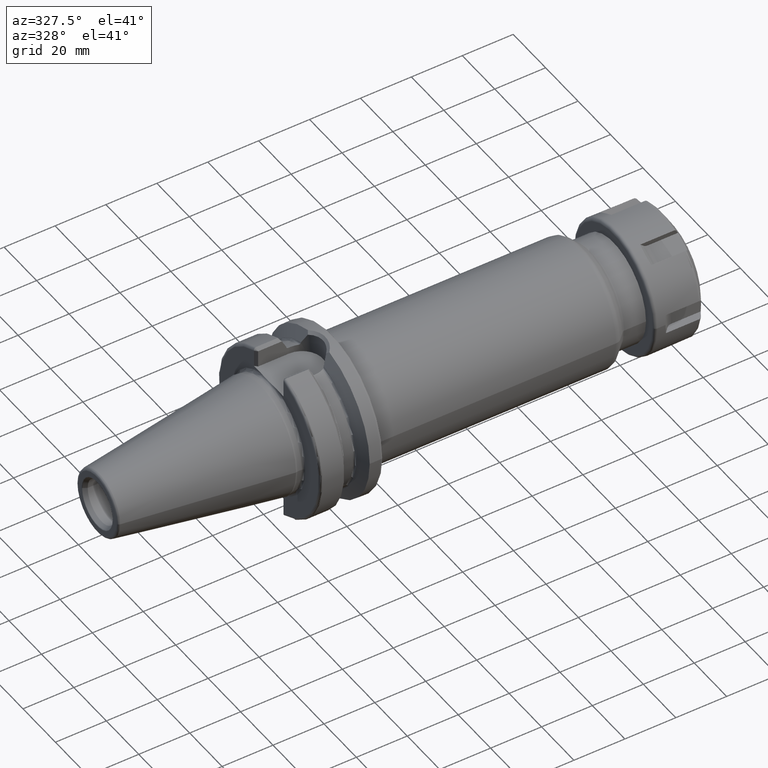
[diagram: clean part render]
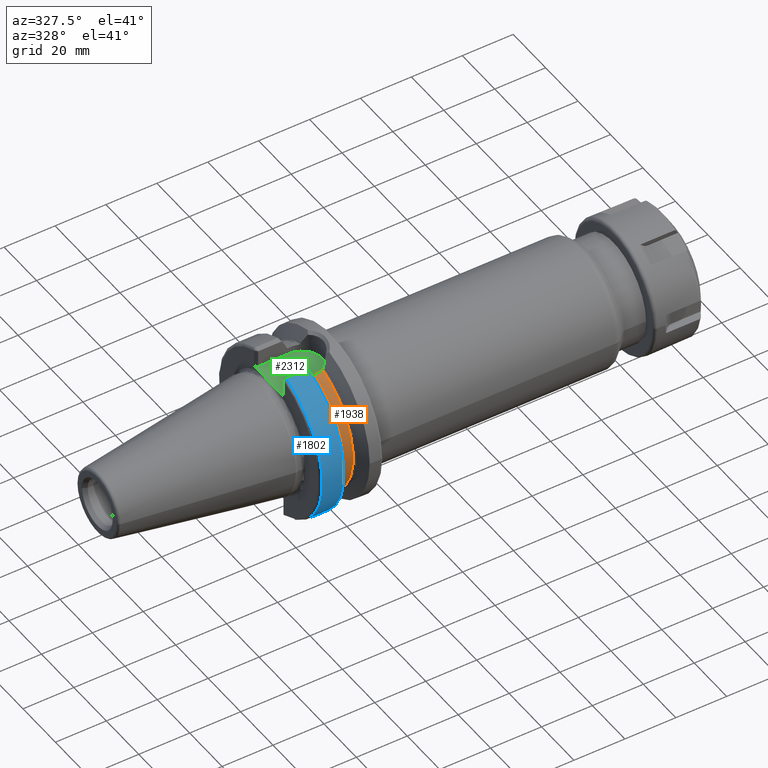
[diagram: same view with three faces highlighted in distinct colors, each labeled with its STEP entity id]
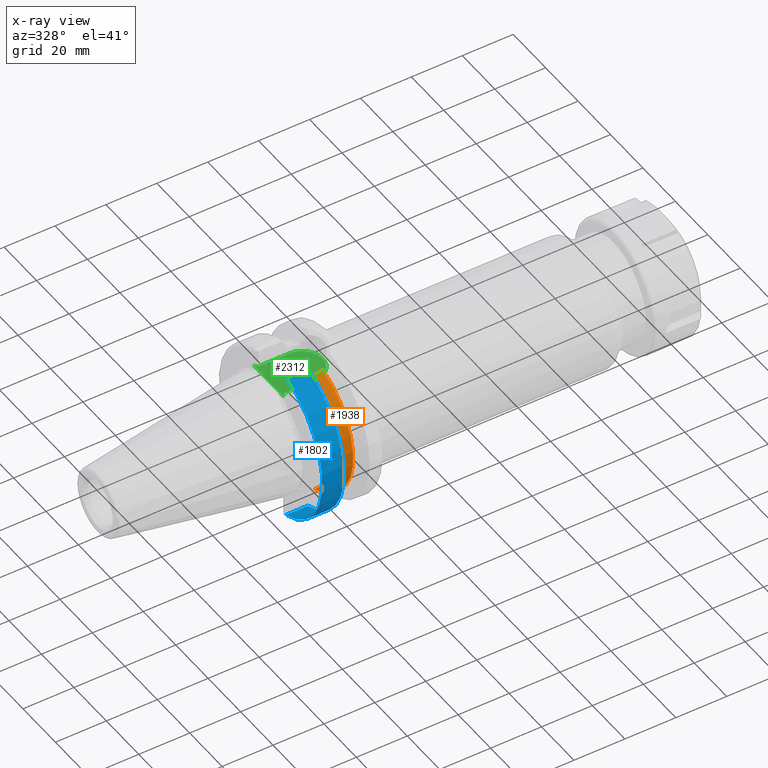
[diagram: x-ray of the same camera — body ghosted, the three highlighted faces saturated]
A machine part, auxiliary view with three faces highlighted in distinct colors.
The next image is the same camera in x-ray (body ghosted, the three faces saturated) — at least one of them is partly hidden behind the body in this view.
Their STEP definitions:

[orange] entity #1938 — the highlighted cylindrical surface (partial cylindrical patch) has radius 26.375 mm, axis along (1, 0, 0).
#308=DIRECTION('',(1.E0,0.E0,0.E0));
#309=VECTOR('',#308,3.425E-1);
#310=CARTESIAN_POINT('',(1.48125E1,-8.095E0,-2.510202382279E1));
#311=LINE('',#310,#309);
#367=CARTESIAN_POINT('',(1.83875E1,-7.421588020768E0,-2.530929979770E1));
#368=CARTESIAN_POINT('',(1.804170386611E1,-7.572200800631E0,-2.526513476699E1));
#369=CARTESIAN_POINT('',(1.734035783411E1,-7.820815511030E0,-2.518941465742E1));
#370=CARTESIAN_POINT('',(1.625266243851E1,-8.045449936191E0,-2.511808739805E1));
#371=CARTESIAN_POINT('',(1.552274116086E1,-8.095E0,-2.510202382279E1));
#372=CARTESIAN_POINT('',(1.5155E1,-8.095E0,-2.510202382279E1));
#374=CARTESIAN_POINT('',(1.48125E1,0.E0,0.E0));
#375=DIRECTION('',(-1.E0,0.E0,0.E0));
#376=DIRECTION('',(0.E0,-3.069194312796E-1,-9.517355003902E-1));
#377=AXIS2_PLACEMENT_3D('',#374,#375,#376);
#379=CARTESIAN_POINT('',(1.5155E1,-8.095E0,2.510202382279E1));
#380=CARTESIAN_POINT('',(1.552274116086E1,-8.095E0,2.510202382279E1));
#381=CARTESIAN_POINT('',(1.625266243851E1,-8.045449936191E0,2.511808739805E1));
#382=CARTESIAN_POINT('',(1.734035783411E1,-7.820815511030E0,2.518941465742E1));
#383=CARTESIAN_POINT('',(1.804170386611E1,-7.572200800631E0,2.526513476699E1));
#384=CARTESIAN_POINT('',(1.83875E1,-7.421588020768E0,2.530929979770E1));
#465=CARTESIAN_POINT('',(1.83875E1,0.E0,0.E0));
#466=DIRECTION('',(-1.E0,0.E0,0.E0));
#467=DIRECTION('',(0.E0,-2.813872235362E-1,-9.595943051262E-1));
#468=AXIS2_PLACEMENT_3D('',#465,#466,#467);
#551=DIRECTION('',(1.E0,0.E0,0.E0));
#552=VECTOR('',#551,3.425E-1);
#553=CARTESIAN_POINT('',(1.48125E1,-8.095E0,2.510202382279E1));
#554=LINE('',#553,#552);
#1242=CARTESIAN_POINT('',(1.48125E1,-8.095E0,-2.510202382279E1));
#1243=CARTESIAN_POINT('',(1.48125E1,-8.095E0,2.510202382279E1));
#1244=VERTEX_POINT('',#1242);
#1245=VERTEX_POINT('',#1243);
#1254=CARTESIAN_POINT('',(1.83875E1,-7.421588020768E0,-2.530929979770E1));
#1255=CARTESIAN_POINT('',(1.83875E1,-7.421588020768E0,2.530929979770E1));
#1256=VERTEX_POINT('',#1254);
#1257=VERTEX_POINT('',#1255);
#1383=CARTESIAN_POINT('',(1.5155E1,-8.095E0,2.510202382279E1));
#1384=VERTEX_POINT('',#1383);
#1391=CARTESIAN_POINT('',(1.5155E1,-8.095E0,-2.510202382279E1));
#1392=VERTEX_POINT('',#1391);
#1921=CARTESIAN_POINT('',(1.106999478413E1,0.E0,0.E0));
#1922=DIRECTION('',(1.E0,0.E0,0.E0));
#1923=DIRECTION('',(0.E0,-1.E0,0.E0));
#1924=AXIS2_PLACEMENT_3D('',#1921,#1922,#1923);
#1925=CYLINDRICAL_SURFACE('',#1924,2.6375E1);
#1927=ORIENTED_EDGE('',*,*,#1926,.T.);
#1928=ORIENTED_EDGE('',*,*,#1860,.F.);
#1929=ORIENTED_EDGE('',*,*,#1894,.T.);
#1931=ORIENTED_EDGE('',*,*,#1930,.T.);
#1933=ORIENTED_EDGE('',*,*,#1932,.T.);
#1935=ORIENTED_EDGE('',*,*,#1934,.F.);
#1936=EDGE_LOOP('',(#1927,#1928,#1929,#1931,#1933,#1935));
#1937=FACE_OUTER_BOUND('',#1936,.F.);
#1938=ADVANCED_FACE('',(#1937),#1925,.T.);
#373=B_SPLINE_CURVE_WITH_KNOTS('',3,(#367,#368,#369,#370,#371,#372),
.UNSPECIFIED.,.F.,.F.,(4,1,1,4),(0.E0,3.333333333333E-1,6.666666666667E-1,1.E0),
.UNSPECIFIED.);
#378=CIRCLE('',#377,2.6375E1);
#385=B_SPLINE_CURVE_WITH_KNOTS('',3,(#379,#380,#381,#382,#383,#384),
.UNSPECIFIED.,.F.,.F.,(4,1,1,4),(0.E0,3.333333333333E-1,6.666666666667E-1,1.E0),
.UNSPECIFIED.);
#469=CIRCLE('',#468,2.6375E1);
#1860=EDGE_CURVE('',#1244,#1392,#311,.T.);
#1894=EDGE_CURVE('',#1244,#1245,#378,.T.);
#1926=EDGE_CURVE('',#1256,#1392,#373,.T.);
#1930=EDGE_CURVE('',#1245,#1384,#554,.T.);
#1932=EDGE_CURVE('',#1384,#1257,#385,.T.);
#1934=EDGE_CURVE('',#1256,#1257,#469,.T.);

[blue] entity #1802 — the highlighted cylindrical surface (partial cylindrical patch) has radius 31.4875 mm, axis along (1, 0, 0).
#210=CARTESIAN_POINT('',(1.157272253103E1,0.E0,0.E0));
#211=DIRECTION('',(1.E0,0.E0,0.E0));
#212=DIRECTION('',(0.E0,-2.983189831898E-1,9.544662300305E-1));
#213=AXIS2_PLACEMENT_3D('',#210,#211,#212);
#215=DIRECTION('',(9.999999999998E-1,-3.572441507671E-7,4.802508939409E-7));
#216=VECTOR('',#215,8.572722533299E0);
#217=CARTESIAN_POINT('',(2.999999997734E0,-9.052776400559E0,-3.015808496187E1));
#218=LINE('',#217,#216);
#219=CARTESIAN_POINT('',(3.E0,0.E0,0.E0));
#220=DIRECTION('',(-1.E0,0.E0,0.E0));
#221=DIRECTION('',(0.E0,-2.875039130802E-1,-9.577794631143E-1));
#222=AXIS2_PLACEMENT_3D('',#219,#220,#221);
#224=DIRECTION('',(-9.999999999911E-1,2.496639374553E-6,3.395432034657E-6));
#225=VECTOR('',#224,8.572722551500E0);
#226=CARTESIAN_POINT('',(1.157272253103E1,-9.393318983190E0,3.005375541808E1));
#227=LINE('',#226,#225);
#606=CARTESIAN_POINT('',(2.999999997734E0,-9.052776400559E0,-3.015808496187E1));
#1396=CARTESIAN_POINT('',(1.157272253103E1,-9.393318983190E0,3.005375541808E1));
#1397=CARTESIAN_POINT('',(1.157272253103E1,-9.052779463114E0,
-3.015808084481E1));
#1398=VERTEX_POINT('',#1396);
#1399=VERTEX_POINT('',#1397);
#1412=CARTESIAN_POINT('',(3.E0,-9.393347656107E0,3.005374645633E1));
#1413=VERTEX_POINT('',#1412);
#1434=VERTEX_POINT('',#606);
#1788=CARTESIAN_POINT('',(-7.002E1,0.E0,0.E0));
#1789=DIRECTION('',(1.E0,0.E0,0.E0));
#1790=DIRECTION('',(0.E0,-1.E0,0.E0));
#1791=AXIS2_PLACEMENT_3D('',#1788,#1789,#1790);
#1792=CYLINDRICAL_SURFACE('',#1791,3.14875E1);
#1793=ORIENTED_EDGE('',*,*,#1779,.T.);
#1795=ORIENTED_EDGE('',*,*,#1794,.F.);
#1797=ORIENTED_EDGE('',*,*,#1796,.T.);
#1799=ORIENTED_EDGE('',*,*,#1798,.F.);
#1800=EDGE_LOOP('',(#1793,#1795,#1797,#1799));
#1801=FACE_OUTER_BOUND('',#1800,.F.);
#1802=ADVANCED_FACE('',(#1801),#1792,.T.);
#214=CIRCLE('',#213,3.14875E1);
#223=CIRCLE('',#222,3.14875E1);
#1779=EDGE_CURVE('',#1398,#1399,#214,.T.);
#1794=EDGE_CURVE('',#1434,#1399,#218,.T.);
#1796=EDGE_CURVE('',#1434,#1413,#223,.T.);
#1798=EDGE_CURVE('',#1398,#1413,#227,.T.);

[green] entity #2312 — the highlighted planar face has unit normal (0, 0, 1).
#680=DIRECTION('',(1.E0,0.E0,0.E0));
#681=VECTOR('',#680,1.2155E1);
#682=CARTESIAN_POINT('',(3.E0,-8.095E0,2.245E1));
#683=LINE('',#682,#681);
#684=DIRECTION('',(0.E0,1.E0,0.E0));
#685=VECTOR('',#684,4.706022328605E0);
#686=CARTESIAN_POINT('',(2.E0,-9.095E0,2.245E1));
#687=LINE('',#686,#685);
#688=DIRECTION('',(0.E0,1.E0,0.E0));
#689=VECTOR('',#688,4.706022328605E0);
#690=CARTESIAN_POINT('',(2.E0,4.388977671395E0,2.245E1));
#691=LINE('',#690,#689);
#692=DIRECTION('',(-1.E0,0.E0,0.E0));
#693=VECTOR('',#692,1.2155E1);
#694=CARTESIAN_POINT('',(1.5155E1,8.095E0,2.245E1));
#695=LINE('',#694,#693);
#696=CARTESIAN_POINT('',(1.5155E1,0.E0,2.245E1));
#697=DIRECTION('',(0.E0,0.E0,1.E0));
#698=DIRECTION('',(0.E0,-1.E0,0.E0));
#699=AXIS2_PLACEMENT_3D('',#696,#697,#698);
#705=DIRECTION('',(7.071067811865E-1,7.071067811865E-1,0.E0));
#706=VECTOR('',#705,1.414213562373E0);
#707=CARTESIAN_POINT('',(2.E0,-9.095E0,2.245E1));
#708=LINE('',#707,#706);
#714=CARTESIAN_POINT('',(2.E0,-4.388977671395E0,2.245E1));
#715=CARTESIAN_POINT('',(2.E0,-3.970864393558E0,2.245E1));
#716=CARTESIAN_POINT('',(1.981114905487E0,-3.134790252725E0,2.245E1));
#717=CARTESIAN_POINT('',(1.935909306649E0,-1.881114481277E0,2.245E1));
#718=CARTESIAN_POINT('',(1.903922826077E0,-6.271978192649E-1,2.245E1));
#719=CARTESIAN_POINT('',(1.903921553166E0,6.271174205746E-1,2.245E1));
#720=CARTESIAN_POINT('',(1.935907277499E0,1.881058976319E0,2.245E1));
#721=CARTESIAN_POINT('',(1.981114329557E0,3.134769380755E0,2.245E1));
#722=CARTESIAN_POINT('',(2.E0,3.970858027314E0,2.245E1));
#723=CARTESIAN_POINT('',(2.E0,4.388977671395E0,2.245E1));
#730=DIRECTION('',(-7.071067811865E-1,7.071067811865E-1,0.E0));
#731=VECTOR('',#730,1.414213562373E0);
#732=CARTESIAN_POINT('',(3.E0,8.095E0,2.245E1));
#733=LINE('',#732,#731);
#1364=CARTESIAN_POINT('',(1.5155E1,-8.095E0,2.245E1));
#1365=CARTESIAN_POINT('',(1.5155E1,8.095E0,2.245E1));
#1366=VERTEX_POINT('',#1364);
#1367=VERTEX_POINT('',#1365);
#1368=CARTESIAN_POINT('',(2.E0,4.388977671395E0,2.245E1));
#1369=VERTEX_POINT('',#1368);
#1370=CARTESIAN_POINT('',(2.E0,-4.388977671395E0,2.245E1));
#1371=VERTEX_POINT('',#1370);
#1405=CARTESIAN_POINT('',(3.E0,-8.095E0,2.245E1));
#1407=VERTEX_POINT('',#1405);
#1409=CARTESIAN_POINT('',(2.E0,-9.095E0,2.245E1));
#1411=VERTEX_POINT('',#1409);
#1418=CARTESIAN_POINT('',(2.E0,9.095E0,2.245E1));
#1419=VERTEX_POINT('',#1418);
#1420=CARTESIAN_POINT('',(3.E0,8.095E0,2.245E1));
#1422=VERTEX_POINT('',#1420);
#2294=CARTESIAN_POINT('',(0.E0,0.E0,2.245E1));
#2295=DIRECTION('',(0.E0,0.E0,1.E0));
#2296=DIRECTION('',(1.E0,0.E0,0.E0));
#2297=AXIS2_PLACEMENT_3D('',#2294,#2295,#2296);
#2298=PLANE('',#2297);
#2299=ORIENTED_EDGE('',*,*,#2060,.F.);
#2301=ORIENTED_EDGE('',*,*,#2300,.F.);
#2302=ORIENTED_EDGE('',*,*,#1671,.T.);
#2304=ORIENTED_EDGE('',*,*,#2303,.T.);
#2305=ORIENTED_EDGE('',*,*,#1649,.T.);
#2307=ORIENTED_EDGE('',*,*,#2306,.F.);
#2308=ORIENTED_EDGE('',*,*,#2285,.F.);
#2309=ORIENTED_EDGE('',*,*,#2031,.F.);
#2310=EDGE_LOOP('',(#2299,#2301,#2302,#2304,#2305,#2307,#2308,#2309));
#2311=FACE_OUTER_BOUND('',#2310,.F.);
#2312=ADVANCED_FACE('',(#2311),#2298,.T.);
#700=CIRCLE('',#699,8.095E0);
#724=B_SPLINE_CURVE_WITH_KNOTS('',3,(#714,#715,#716,#717,#718,#719,#720,#721,
#722,#723),.UNSPECIFIED.,.F.,.F.,(4,1,1,1,1,1,1,4),(0.E0,1.428571428571E-1,
2.857142857143E-1,4.285714285714E-1,5.714285714286E-1,7.142857142857E-1,
8.571428571429E-1,1.E0),.UNSPECIFIED.);
#1649=EDGE_CURVE('',#1369,#1419,#691,.T.);
#1671=EDGE_CURVE('',#1411,#1371,#687,.T.);
#2031=EDGE_CURVE('',#1366,#1367,#700,.T.);
#2060=EDGE_CURVE('',#1407,#1366,#683,.T.);
#2285=EDGE_CURVE('',#1367,#1422,#695,.T.);
#2300=EDGE_CURVE('',#1411,#1407,#708,.T.);
#2303=EDGE_CURVE('',#1371,#1369,#724,.T.);
#2306=EDGE_CURVE('',#1422,#1419,#733,.T.);